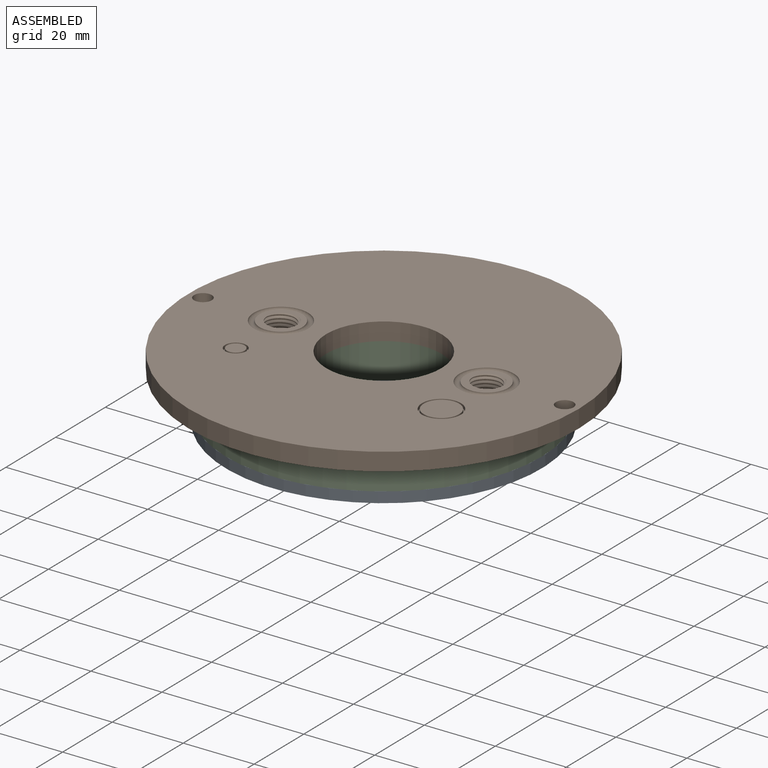
[diagram: assembled view]
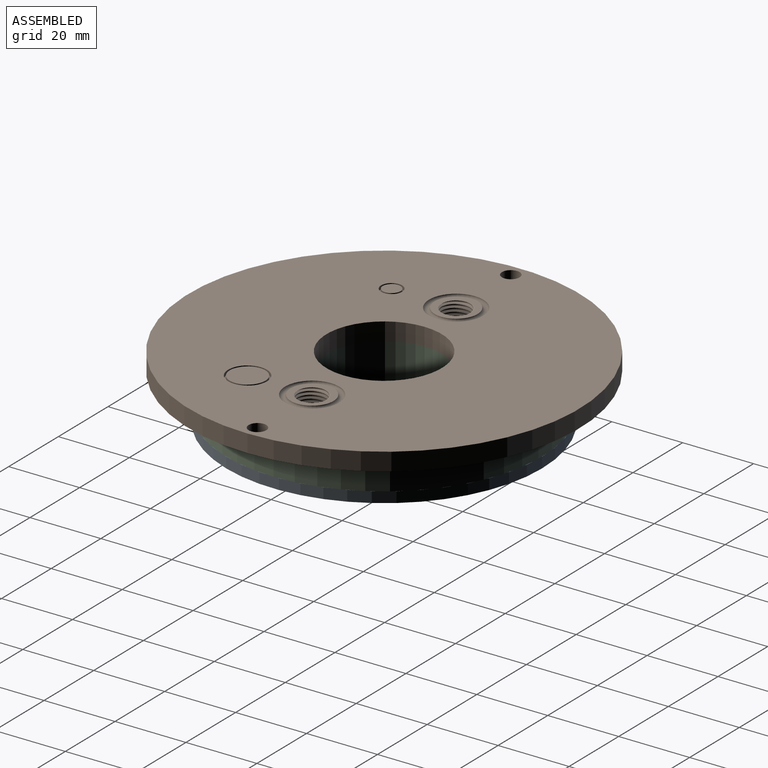
[diagram: assembled view, second angle]
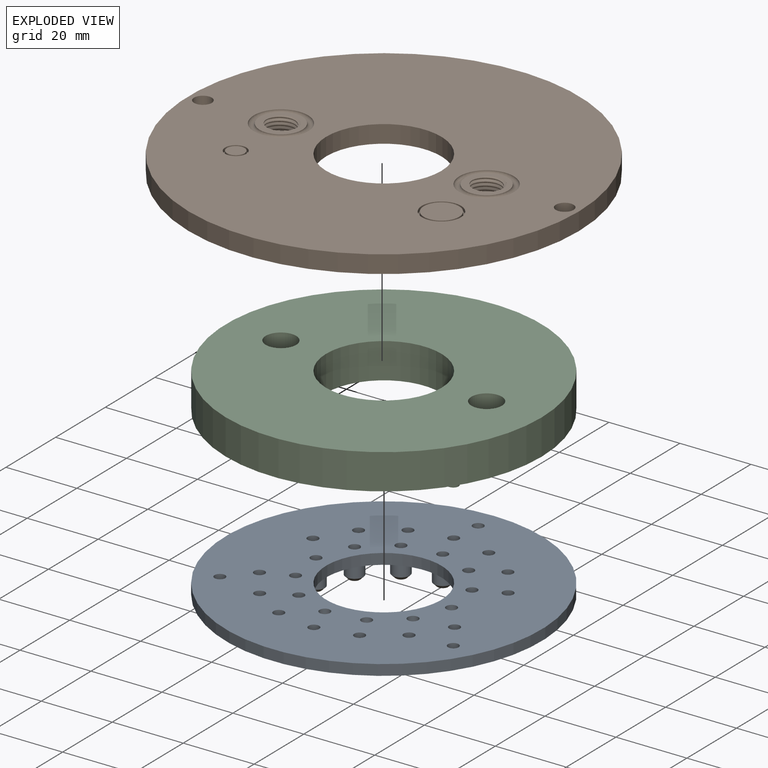
[diagram: exploded view]
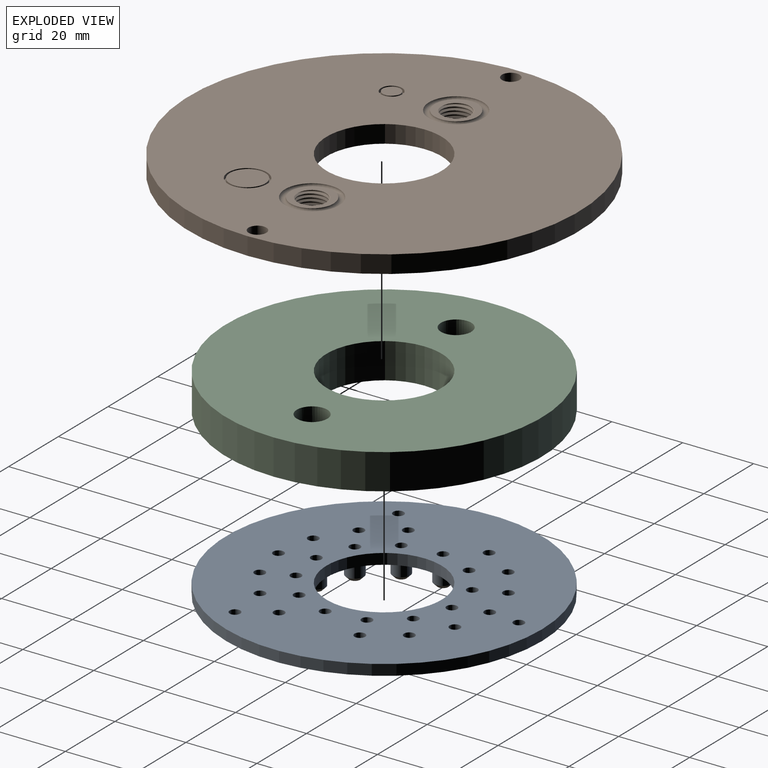
[diagram: exploded view, second angle]
ASSEMBLY  parts=3 mates=2
PART A: 85 faces, bbox 89x89x8 mm
  f0: cylinder r=16.25mm len=32.5mm, axis (0,0,-1), area 306.3mm2, adj f31,f58
  f1: cylinder r=44.5mm len=89mm, axis (0,0,-1), area 838.8mm2, adj f31,f58
  f2: cylinder r=1.5mm len=3mm, axis (0,0,1), area 28.3mm2, adj f31,f58
  f3: cylinder r=1.5mm len=3mm, axis (0,0,1), area 28.3mm2, adj f31,f58
  f4: cylinder r=1.5mm len=3mm, axis (0,0,1), area 28.3mm2, adj f31,f58
  f5: cylinder r=1.5mm len=8mm, axis (0,0,-1), area 75.4mm2, adj f31,f72
  f6: cylinder r=1.5mm len=8mm, axis (0,0,-1), area 75.4mm2, adj f31,f73
  f7: cylinder r=1.5mm len=8mm, axis (0,0,-1), area 75.4mm2, adj f31,f75
  f8: cylinder r=1.5mm len=8mm, axis (0,0,-1), area 75.4mm2, adj f31,f78
  f9: cylinder r=1.5mm len=8mm, axis (0,0,-1), area 75.4mm2, adj f31,f81
  f10: cylinder r=1.5mm len=8mm, axis (0,0,-1), area 75.4mm2, adj f31,f82
  f11: cylinder r=1.5mm len=8mm, axis (0,0,-1), area 75.4mm2, adj f31,f61
  f12: cylinder r=1.5mm len=8mm, axis (0,0,-1), area 75.4mm2, adj f31,f62
  f13: cylinder r=1.5mm len=8mm, axis (0,0,-1), area 75.4mm2, adj f31,f63
  f14: cylinder r=1.5mm len=8mm, axis (0,0,-1), area 75.4mm2, adj f31,f66
  f15: cylinder r=1.5mm len=8mm, axis (0,0,-1), area 75.4mm2, adj f31,f68
  f16: cylinder r=1.5mm len=8mm, axis (0,0,-1), area 75.4mm2, adj f31,f65
  f17: cylinder r=1.5mm len=8mm, axis (0,0,-1), area 75.4mm2, adj f31,f64
  f18: cylinder r=1.5mm len=8mm, axis (0,0,-1), area 75.4mm2, adj f31,f59
  f19: cylinder r=1.5mm len=8mm, axis (0,0,-1), area 75.4mm2, adj f31,f60
  f20: cylinder r=1.5mm len=8mm, axis (0,0,-1), area 75.4mm2, adj f31,f83
  f21: cylinder r=1.5mm len=8mm, axis (0,0,-1), area 75.4mm2, adj f31,f84
  f22: cylinder r=1.5mm len=8mm, axis (0,0,-1), area 75.4mm2, adj f31,f80
  f23: cylinder r=1.5mm len=8mm, axis (0,0,-1), area 75.4mm2, adj f31,f79
  f24: cylinder r=1.5mm len=8mm, axis (0,0,-1), area 75.4mm2, adj f31,f77
  f25: cylinder r=1.5mm len=8mm, axis (0,0,-1), area 75.4mm2, adj f31,f76
  f26: cylinder r=1.5mm len=8mm, axis (0,0,-1), area 75.4mm2, adj f31,f74
  f27: cylinder r=1.5mm len=8mm, axis (0,0,-1), area 75.4mm2, adj f31,f71
  f28: cylinder r=1.5mm len=8mm, axis (0,0,-1), area 75.4mm2, adj f31,f69
  f29: cylinder r=1.5mm len=8mm, axis (0,0,-1), area 75.4mm2, adj f31,f67
  f30: cylinder r=1.5mm len=8mm, axis (0,0,-1), area 75.4mm2, adj f31,f70
  f31: plane 89x89mm, normal (0,0,-1), area 5186.6mm2, adj f0,f1,f2,f3,f4,f5,f6,f7
  f32: cylinder r=2.5mm len=5mm, axis (0,0,1), area 62.8mm2, adj f58,f67
  f33: cylinder r=2.5mm len=5mm, axis (0,0,1), area 62.8mm2, adj f58,f71
  f34: cylinder r=2.5mm len=5mm, axis (0,0,1), area 62.8mm2, adj f58,f69
  f35: cylinder r=2.5mm len=5mm, axis (0,0,1), area 62.8mm2, adj f58,f60
  f36: cylinder r=2.5mm len=5mm, axis (0,0,1), area 62.8mm2, adj f58,f59
  f37: cylinder r=2.5mm len=5mm, axis (0,0,1), area 62.8mm2, adj f58,f64
  f38: cylinder r=2.5mm len=5mm, axis (0,0,1), area 62.8mm2, adj f58,f65
  f39: cylinder r=2.5mm len=5mm, axis (0,0,1), area 62.8mm2, adj f58,f62
  f40: cylinder r=2.5mm len=5mm, axis (0,0,1), area 62.8mm2, adj f58,f63
  f41: cylinder r=2.5mm len=5mm, axis (0,0,1), area 62.8mm2, adj f58,f66
  f42: cylinder r=2.5mm len=5mm, axis (0,0,1), area 62.8mm2, adj f58,f68
  f43: cylinder r=2.5mm len=5mm, axis (0,0,1), area 62.8mm2, adj f58,f70
  f44: cylinder r=2.5mm len=5mm, axis (0,0,1), area 62.8mm2, adj f58,f72
  f45: cylinder r=2.5mm len=5mm, axis (0,0,1), area 62.8mm2, adj f58,f61
  f46: cylinder r=2.5mm len=5mm, axis (0,0,1), area 62.8mm2, adj f58,f82
  f47: cylinder r=2.5mm len=5mm, axis (0,0,1), area 62.8mm2, adj f58,f81
  f48: cylinder r=2.5mm len=5mm, axis (0,0,1), area 62.8mm2, adj f58,f78
  f49: cylinder r=2.5mm len=5mm, axis (0,0,1), area 62.8mm2, adj f58,f75
  f50: cylinder r=2.5mm len=5mm, axis (0,0,1), area 62.8mm2, adj f58,f73
  f51: cylinder r=2.5mm len=5mm, axis (0,0,1), area 62.8mm2, adj f58,f74
  f52: cylinder r=2.5mm len=5mm, axis (0,0,1), area 62.8mm2, adj f58,f76
  f53: cylinder r=2.5mm len=5mm, axis (0,0,1), area 62.8mm2, adj f58,f77
  f54: cylinder r=2.5mm len=5mm, axis (0,0,1), area 62.8mm2, adj f58,f79
  f55: cylinder r=2.5mm len=5mm, axis (0,0,1), area 62.8mm2, adj f58,f80
  f56: cylinder r=2.5mm len=5mm, axis (0,0,1), area 62.8mm2, adj f58,f84
  f57: cylinder r=2.5mm len=5mm, axis (0,0,1), area 62.8mm2, adj f58,f83
  f58: plane 89x89mm, normal (0,0,1), area 4859.8mm2, adj f0,f1,f2,f3,f4,f32,f33,f34
  f59: cone r=1.5mm half-angle=45deg, axis (0,0,-1), area 17.8mm2, adj f18,f36
  f60: cone r=1.5mm half-angle=45deg, axis (0,0,-1), area 17.8mm2, adj f19,f35
  f61: cone r=1.5mm half-angle=45deg, axis (0,0,-1), area 17.8mm2, adj f11,f45
  f62: cone r=1.5mm half-angle=45deg, axis (0,0,-1), area 17.8mm2, adj f12,f39
  f63: cone r=1.5mm half-angle=45deg, axis (0,0,-1), area 17.8mm2, adj f13,f40
  f64: cone r=1.5mm half-angle=45deg, axis (0,0,-1), area 17.8mm2, adj f17,f37
  f65: cone r=1.5mm half-angle=45deg, axis (0,0,-1), area 17.8mm2, adj f16,f38
  f66: cone r=1.5mm half-angle=45deg, axis (0,0,-1), area 17.8mm2, adj f14,f41
  f67: cone r=1.5mm half-angle=45deg, axis (0,0,-1), area 17.8mm2, adj f29,f32
  f68: cone r=1.5mm half-angle=45deg, axis (0,0,-1), area 17.8mm2, adj f15,f42
  f69: cone r=1.5mm half-angle=45deg, axis (0,0,-1), area 17.8mm2, adj f28,f34
  f70: cone r=1.5mm half-angle=45deg, axis (0,0,-1), area 17.8mm2, adj f30,f43
  f71: cone r=1.5mm half-angle=45deg, axis (0,0,-1), area 17.8mm2, adj f27,f33
  f72: cone r=1.5mm half-angle=45deg, axis (0,0,-1), area 17.8mm2, adj f5,f44
  f73: cone r=1.5mm half-angle=45deg, axis (0,0,-1), area 17.8mm2, adj f6,f50
  f74: cone r=1.5mm half-angle=45deg, axis (0,0,-1), area 17.8mm2, adj f26,f51
  f75: cone r=1.5mm half-angle=45deg, axis (0,0,-1), area 17.8mm2, adj f7,f49
  f76: cone r=1.5mm half-angle=45deg, axis (0,0,-1), area 17.8mm2, adj f25,f52
  f77: cone r=1.5mm half-angle=45deg, axis (0,0,-1), area 17.8mm2, adj f24,f53
  f78: cone r=1.5mm half-angle=45deg, axis (0,0,-1), area 17.8mm2, adj f8,f48
  f79: cone r=1.5mm half-angle=45deg, axis (0,0,-1), area 17.8mm2, adj f23,f54
  f80: cone r=1.5mm half-angle=45deg, axis (0,0,-1), area 17.8mm2, adj f22,f55
  f81: cone r=1.5mm half-angle=45deg, axis (0,0,-1), area 17.8mm2, adj f9,f47
  f82: cone r=1.5mm half-angle=45deg, axis (0,0,-1), area 17.8mm2, adj f10,f46
  f83: cone r=1.5mm half-angle=45deg, axis (0,0,-1), area 17.8mm2, adj f20,f57
  f84: cone r=1.5mm half-angle=45deg, axis (0,0,-1), area 17.8mm2, adj f21,f56
PART B: 26 faces, bbox 110.3x110.3x6.3 mm
  f0: plane 110x110mm, normal (0,0,1), area 8143.5mm2, adj f3,f4,f5,f6,f9,f13,f16,f17
  f1: plane 12.4x12.4mm, normal (0,0,1), area 58.4mm2, adj f17,f22,f23,f24,f25
  f2: plane 12.4x12.4mm, normal (0,0,1), area 58.4mm2, adj f16,f18,f19,f20,f21
  f3: cylinder r=16.25mm len=32.5mm, axis (0,0,-1), area 510.5mm2, adj f0,f7
  f4: cylinder r=2.5mm len=5mm, axis (0,0,-1), area 78.5mm2, adj f0,f7
  f5: cylinder r=2.5mm len=5mm, axis (0,0,-1), area 78.5mm2, adj f0,f7
  f6: cylinder r=55mm len=110mm, axis (0,0,-1), area 1727.9mm2, adj f0,f7
  f7: plane 110.3x110.3mm, normal (0,0,-1), area 8521.3mm2, adj f3,f4,f5,f6,f18,f19,f20,f21
  f8: cylinder r=5mm len=10mm, axis (0,0,1), area 31.4mm2, adj f10,f11
  f9: cylinder r=5.5mm len=11mm, axis (0,0,1), area 34.6mm2, adj f0,f10
  f10: plane 11x11mm, normal (0,0,1), area 16.5mm2, adj f8,f9
  f11: plane 10x10mm, normal (0,0,1), area 78.5mm2, adj f8
  f12: cylinder r=2.5mm len=5mm, axis (0,0,1), area 15.7mm2, adj f14,f15
  f13: cylinder r=3mm len=6mm, axis (0,0,1), area 18.8mm2, adj f0,f14
  f14: plane 6x6mm, normal (0,0,1), area 8.6mm2, adj f12,f13
  f15: plane 5x5mm, normal (0,0,1), area 19.6mm2, adj f12
  f16: torus R=6.85mm, axis (0,0,1), area 108.2mm2, adj f0,f2
  f17: torus R=6.85mm, axis (0,0,-1), area 108.2mm2, adj f0,f1
  f18: bspline ~10.49x9.08mm, area 83.8mm2, adj f2,f7,f20,f21
  f19: bspline ~10.49x9.08mm, area 83.9mm2, adj f2,f7,f20,f21
  f20: bspline ~10.59x9.17mm, area 20.8mm2, adj f2,f7,f18,f19
  f21: cylinder r=4mm len=8mm, axis (0,0,1), area 30.5mm2, adj f2,f7,f18,f19
  f22: bspline ~10.49x9.08mm, area 83.8mm2, adj f1,f7,f24,f25
  f23: bspline ~10.49x9.08mm, area 83.9mm2, adj f1,f7,f24,f25
  f24: bspline ~10.59x9.17mm, area 20.8mm2, adj f1,f7,f22,f23
  f25: cylinder r=4mm len=8mm, axis (0,0,1), area 30.5mm2, adj f1,f7,f22,f23
PART C: 26 faces, bbox 89x13x89 mm
  f0: plane 48.92x46mm, normal (0,-1,0), area 599.6mm2, adj f4,f8,f9,f16,f18
  f1: plane 61.98x27.86mm, normal (0,-1,0), area 365.2mm2, adj f5,f13,f14,f15
  f2: plane 61.98x27.86mm, normal (0,-1,0), area 365.2mm2, adj f5,f10,f11,f12
  f3: cylinder r=16.25mm len=32.5mm, axis (0,1,0), area 1021mm2, adj f7,f19
  f4: cylinder r=4.3mm len=10mm, axis (0,1,0), area 237mm2, adj f0,f7,f9,f16,f17
  f5: cylinder r=4.3mm len=10mm, axis (0,1,0), area 222.4mm2, adj f1,f2,f7,f10,f12,f13,f15,f17
  f6: cylinder r=44.5mm len=89mm, axis (0,1,0), area 2796mm2, adj f7,f17
  f7: plane 89x89mm, normal (0,1,0), area 5275.4mm2, adj f3,f4,f5,f6
  f8: cylinder r=23mm len=46mm, axis (0,1,0), area 692.5mm2, adj f0,f9,f16,f17
  f9: plane 5x3.12mm, normal (1,0,0), area 15.6mm2, adj f0,f4,f8,f17
  f10: cylinder r=27mm len=53.06mm, axis (0,1,0), area 375.1mm2, adj f2,f5,f11,f17
  f11: plane 5x4.38mm, normal (0.97,0,-0.22), area 22.5mm2, adj f2,f10,f12,f17
  f12: cylinder r=31.5mm len=61.98mm, axis (0,1,0), area 440.8mm2, adj f2,f5,f11,f17
  f13: cylinder r=31.5mm len=61.98mm, axis (0,1,0), area 440.8mm2, adj f1,f5,f14,f17
  f14: plane 5x4.38mm, normal (-0.97,0,-0.22), area 22.5mm2, adj f1,f13,f15,f17
  f15: cylinder r=27mm len=53.06mm, axis (0,1,0), area 375.1mm2, adj f1,f5,f14,f17
  f16: plane 5x3.12mm, normal (-1,0,0), area 15.6mm2, adj f0,f4,f8,f17
  f17: plane 89x89mm, normal (0,-1,0), area 3678.6mm2, adj f4,f5,f6,f8,f9,f10,f11,f12
  f18: cylinder r=18.5mm len=37mm, axis (0,1,0), area 581.2mm2, adj f0,f19
  f19: plane 37x37mm, normal (0,-1,0), area 245.6mm2, adj f3,f18
  f20: cylinder r=1.5mm len=3mm, axis (0,1,0), area 28.3mm2, adj f17,f21
  f21: plane 3x3mm, normal (0,-1,0), area 7.1mm2, adj f20
  f22: cylinder r=1.5mm len=3mm, axis (0,1,0), area 28.3mm2, adj f17,f23
  f23: plane 3x3mm, normal (0,-1,0), area 7.1mm2, adj f22
  f24: cylinder r=1.5mm len=3mm, axis (0,1,0), area 28.3mm2, adj f17,f25
  f25: plane 3x3mm, normal (0,-1,0), area 7.1mm2, adj f24
PLACE A rot(axis=(-0.98,-0.21,0),180deg) t=(0.43,0.17,-12.6)mm
PLACE B t=(0.43,0.18,-2.6)mm fixed
PLACE C rot(axis=(0.58,-0.58,-0.58),120deg) t=(0.43,0.18,-2.6)mm
MATE revolute A.f2 <-> C.f22  axis (0,0,-1) through (-32.48,-18.82,-15.6)mm
MATE fastened C.f3 <-> B.f6  axis (0,0,1) through (0.43,0.18,-2.6)mm
